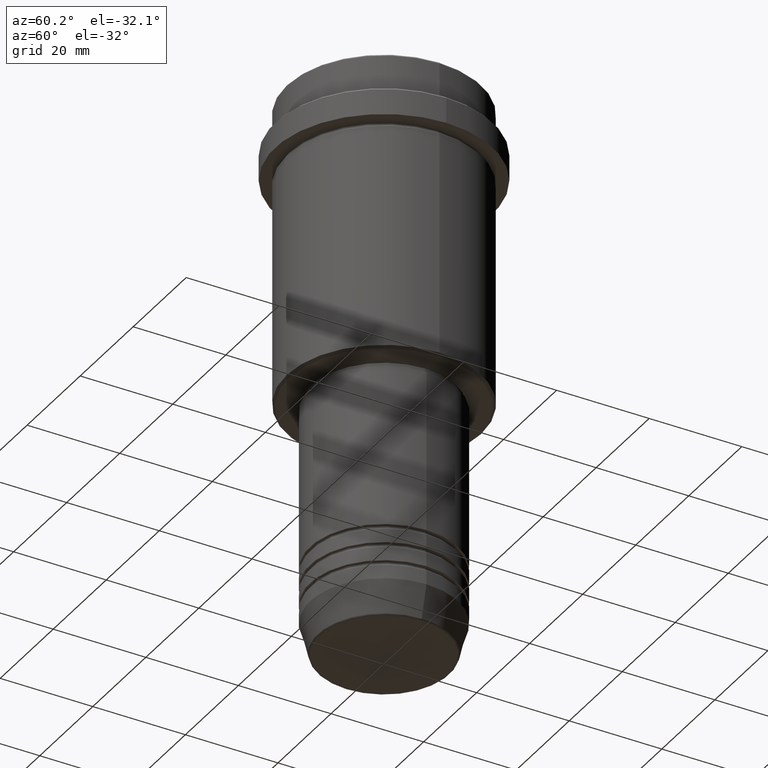
[diagram: clean part render]
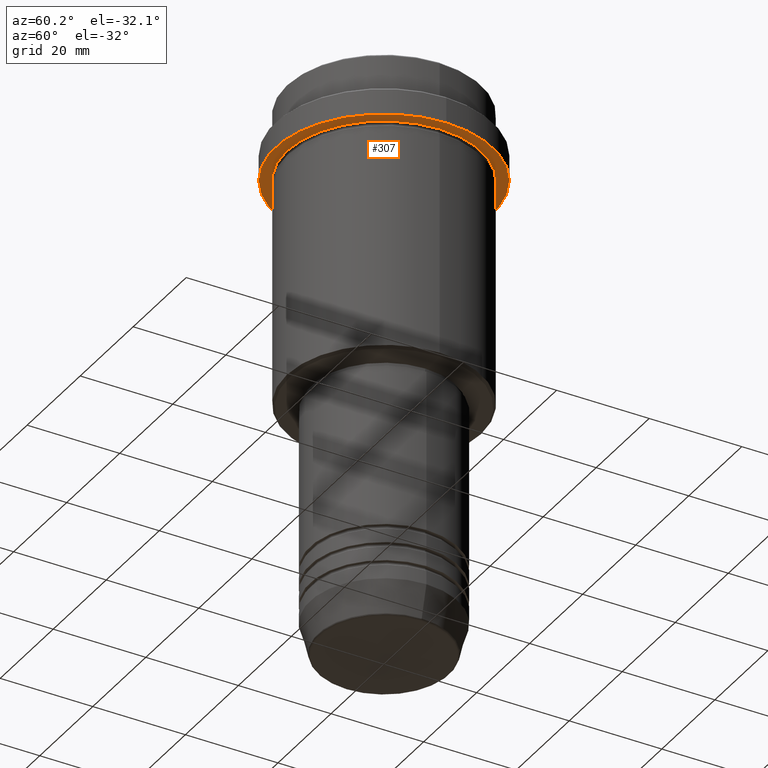
[diagram: same view with one face highlighted and labeled with its STEP entity id]
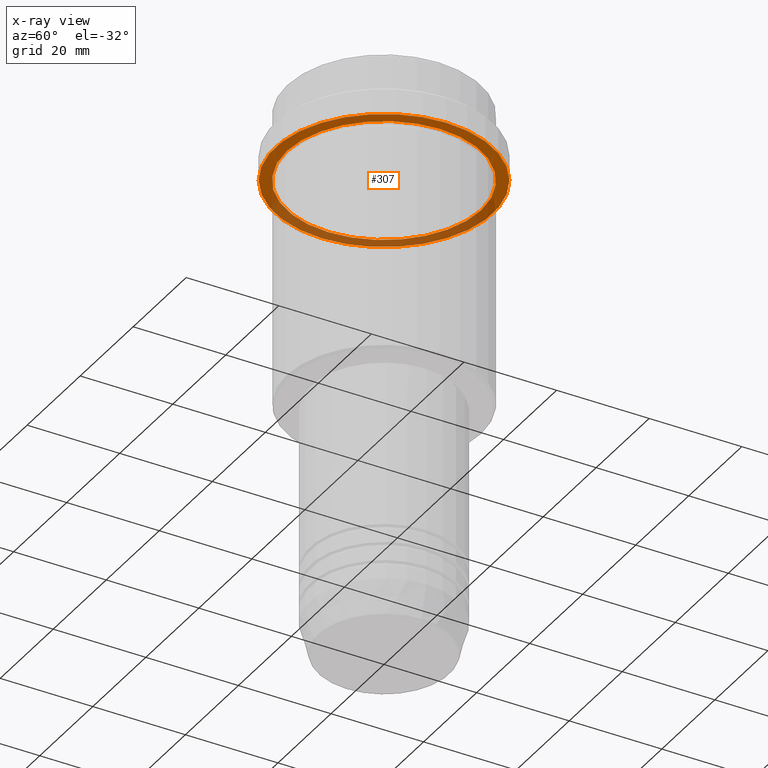
[diagram: x-ray of the same camera — body ghosted, the highlighted face saturated]
A machine part, auxiliary view. The second image highlights one B-rep face of the part: STEP entity #307.
The next image is the same camera in x-ray: the body ghosted, the highlighted face saturated — about 38% of this face is hidden behind the body in this view.
In plain terms, the highlighted planar face has unit normal (0, 0, -1).
Its self-contained STEP definition (entity closure, byte-faithful):
#38 = CIRCLE ( 'NONE', #1147, 20.99999999999999289 ) ;
#47 = DIRECTION ( 'NONE',  ( -1.000000000000000000, 0.000000000000000000, 0.000000000000000000 ) ) ;
#54 = AXIS2_PLACEMENT_3D ( 'NONE', #1029, #1247, #47 ) ;
#119 = VERTEX_POINT ( 'NONE', #1225 ) ;
#140 = ORIENTED_EDGE ( 'NONE', *, *, #814, .F. ) ;
#247 = ORIENTED_EDGE ( 'NONE', *, *, #1390, .F. ) ;
#255 = FACE_BOUND ( 'NONE', #494, .T. ) ;
#259 = VERTEX_POINT ( 'NONE', #585 ) ;
#265 = EDGE_CURVE ( 'NONE', #313, #259, #436, .T. ) ;
#268 = DIRECTION ( 'NONE',  ( 1.000000000000000000, 0.000000000000000000, 0.000000000000000000 ) ) ;
#307 = ADVANCED_FACE ( 'NONE', ( #255, #685 ), #1361, .T. ) ;
#313 = VERTEX_POINT ( 'NONE', #380 ) ;
#331 = AXIS2_PLACEMENT_3D ( 'NONE', #1125, #489, #1243 ) ;
#380 = CARTESIAN_POINT ( 'NONE',  ( -20.99999999999999289, 0.000000000000000000, -15.00000000000000178 ) ) ;
#386 = DIRECTION ( 'NONE',  ( -0.000000000000000000, -0.000000000000000000, 1.000000000000000000 ) ) ;
#419 = EDGE_LOOP ( 'NONE', ( #247, #140 ) ) ;
#436 = CIRCLE ( 'NONE', #54, 20.99999999999999289 ) ;
#489 = DIRECTION ( 'NONE',  ( 0.000000000000000000, 0.000000000000000000, -1.000000000000000000 ) ) ;
#494 = EDGE_LOOP ( 'NONE', ( #1312, #756 ) ) ;
#585 = CARTESIAN_POINT ( 'NONE',  ( 20.99999999999999289, 2.571758278209440872E-15, -15.00000000000000178 ) ) ;
#685 = FACE_OUTER_BOUND ( 'NONE', #419, .T. ) ;
#713 = AXIS2_PLACEMENT_3D ( 'NONE', #1368, #1248, #1154 ) ;
#756 = ORIENTED_EDGE ( 'NONE', *, *, #958, .T. ) ;
#772 = CARTESIAN_POINT ( 'NONE',  ( -23.50000000000000711, 2.877919977996281109E-15, -15.00000000000000000 ) ) ;
#787 = CIRCLE ( 'NONE', #713, 23.50000000000000355 ) ;
#814 = EDGE_CURVE ( 'NONE', #1085, #119, #1106, .T. ) ;
#857 = AXIS2_PLACEMENT_3D ( 'NONE', #918, #1245, #268 ) ;
#918 = CARTESIAN_POINT ( 'NONE',  ( 0.000000000000000000, 0.000000000000000000, -15.00000000000000000 ) ) ;
#958 = EDGE_CURVE ( 'NONE', #259, #313, #38, .T. ) ;
#1029 = CARTESIAN_POINT ( 'NONE',  ( 0.000000000000000000, 0.000000000000000000, -15.00000000000000178 ) ) ;
#1085 = VERTEX_POINT ( 'NONE', #772 ) ;
#1106 = CIRCLE ( 'NONE', #857, 23.50000000000000355 ) ;
#1125 = CARTESIAN_POINT ( 'NONE',  ( 0.000000000000000000, 23.50000000000000355, -15.00000000000000178 ) ) ;
#1147 = AXIS2_PLACEMENT_3D ( 'NONE', #1271, #386, #1264 ) ;
#1154 = DIRECTION ( 'NONE',  ( 1.000000000000000000, 0.000000000000000000, 0.000000000000000000 ) ) ;
#1225 = CARTESIAN_POINT ( 'NONE',  ( 23.50000000000000355, 0.000000000000000000, -15.00000000000000000 ) ) ;
#1243 = DIRECTION ( 'NONE',  ( -1.000000000000000000, 0.000000000000000000, -0.000000000000000000 ) ) ;
#1245 = DIRECTION ( 'NONE',  ( -0.000000000000000000, -0.000000000000000000, 1.000000000000000000 ) ) ;
#1247 = DIRECTION ( 'NONE',  ( -0.000000000000000000, -0.000000000000000000, 1.000000000000000000 ) ) ;
#1248 = DIRECTION ( 'NONE',  ( -0.000000000000000000, -0.000000000000000000, 1.000000000000000000 ) ) ;
#1264 = DIRECTION ( 'NONE',  ( -1.000000000000000000, 0.000000000000000000, 0.000000000000000000 ) ) ;
#1271 = CARTESIAN_POINT ( 'NONE',  ( 0.000000000000000000, 0.000000000000000000, -15.00000000000000178 ) ) ;
#1312 = ORIENTED_EDGE ( 'NONE', *, *, #265, .T. ) ;
#1361 = PLANE ( 'NONE',  #331 ) ;
#1368 = CARTESIAN_POINT ( 'NONE',  ( 0.000000000000000000, 0.000000000000000000, -15.00000000000000000 ) ) ;
#1390 = EDGE_CURVE ( 'NONE', #119, #1085, #787, .T. ) ;